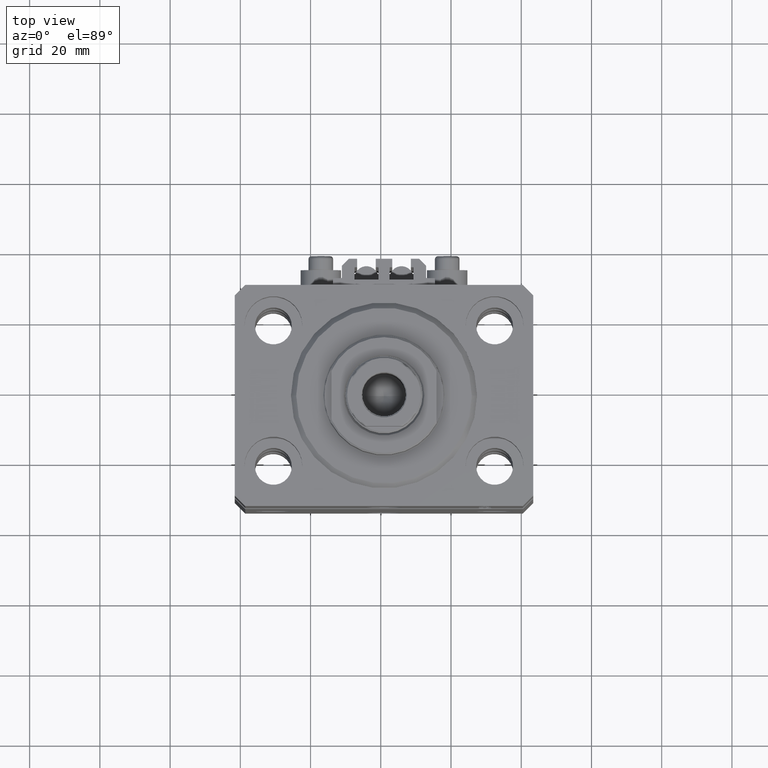
[diagram: clean part render]
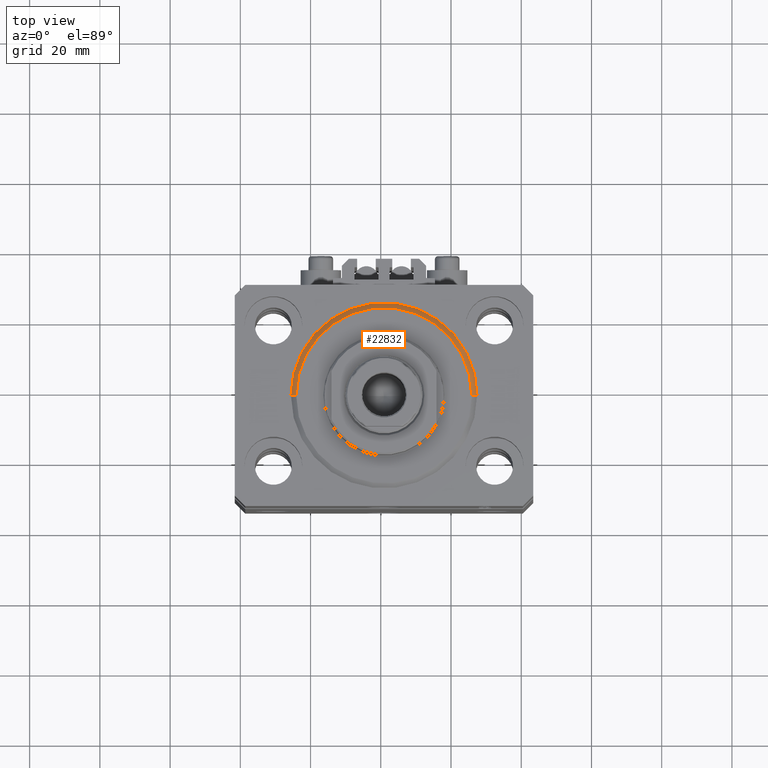
[diagram: same view with one face highlighted and labeled with its STEP entity id]
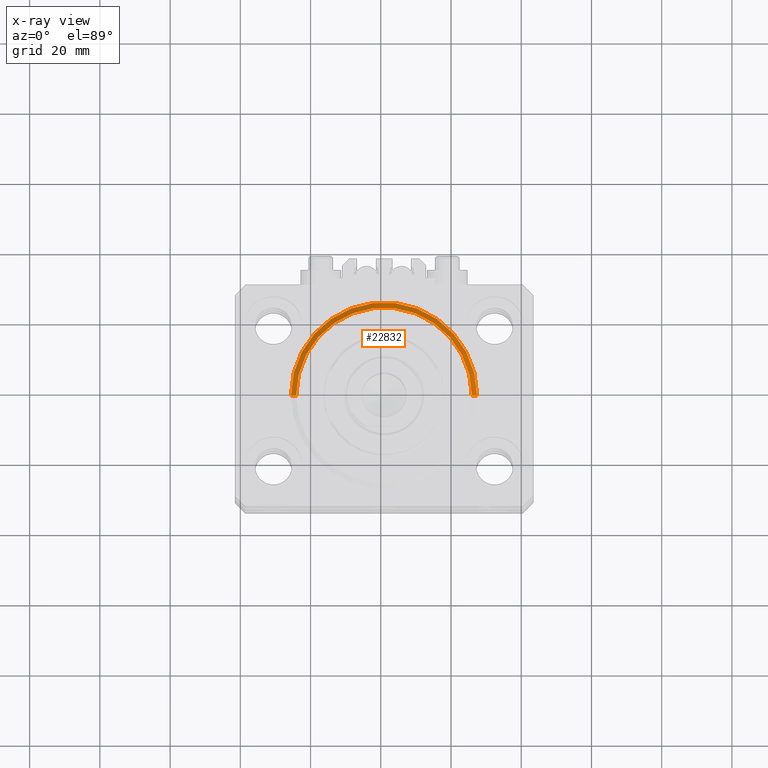
[diagram: x-ray of the same camera — body ghosted, the highlighted face saturated]
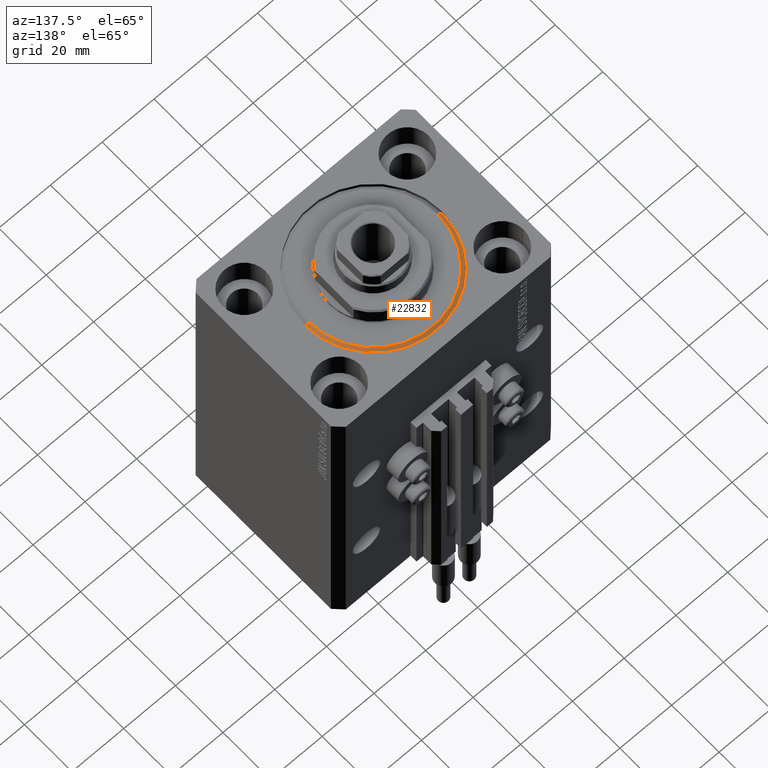
[diagram: same view with one face highlighted and labeled with its STEP entity id]
A machine part, top view. The second image highlights one B-rep face of the part: STEP entity #22832.
The next image is the same camera in x-ray: the body ghosted, the highlighted face saturated — about 0% of this face is hidden behind the body in this view.
A second angle (auxiliary view) of the same face is appended — the face is thin or edge-on in the first view.
In plain terms, the highlighted conical surface has half-angle 45 deg.
Its self-contained STEP definition (entity closure, byte-faithful):
#94 = LINE ( 'NONE', #19136, #48209 ) ;
#1336 = ORIENTED_EDGE ( 'NONE', *, *, #43767, .F. ) ;
#1841 = ORIENTED_EDGE ( 'NONE', *, *, #20472, .T. ) ;
#1879 = LINE ( 'NONE', #20420, #22313 ) ;
#3175 = CARTESIAN_POINT ( 'NONE',  ( 24.99999999999998224, 0.000000000000000000, 0.000000000000000000 ) ) ;
#6661 = CIRCLE ( 'NONE', #20890, 26.50000000000000355 ) ;
#8182 = ORIENTED_EDGE ( 'NONE', *, *, #15376, .F. ) ;
#8434 = DIRECTION ( 'NONE',  ( 1.000000000000000000, 0.000000000000000000, 0.000000000000000000 ) ) ;
#12153 = CARTESIAN_POINT ( 'NONE',  ( 0.000000000000000000, 0.000000000000000000, 1.500000000000018652 ) ) ;
#14587 = VERTEX_POINT ( 'NONE', #28911 ) ;
#15376 = EDGE_CURVE ( 'NONE', #25497, #46887, #94, .T. ) ;
#16100 = DIRECTION ( 'NONE',  ( -0.000000000000000000, -0.000000000000000000, 1.000000000000000000 ) ) ;
#19136 = CARTESIAN_POINT ( 'NONE',  ( 26.50000000000000355, 0.000000000000000000, 1.500000000000018652 ) ) ;
#19940 = DIRECTION ( 'NONE',  ( -0.7071067811865483499, 8.659560562354942719E-17, 0.7071067811865466846 ) ) ;
#20420 = CARTESIAN_POINT ( 'NONE',  ( -26.50000000000000355, 3.245314017740486554E-15, 1.500000000000018652 ) ) ;
#20472 = EDGE_CURVE ( 'NONE', #14587, #29771, #1879, .T. ) ;
#20890 = AXIS2_PLACEMENT_3D ( 'NONE', #12153, #27253, #8434 ) ;
#22313 = VECTOR ( 'NONE', #19940, 1000.000000000000000 ) ;
#22832 = ADVANCED_FACE ( 'NONE', ( #23996 ), #45963, .T. ) ;
#23327 = CARTESIAN_POINT ( 'NONE',  ( 0.000000000000000000, 0.000000000000000000, 0.000000000000000000 ) ) ;
#23551 = DIRECTION ( 'NONE',  ( 0.7071067811865483499, 0.000000000000000000, 0.7071067811865466846 ) ) ;
#23657 = AXIS2_PLACEMENT_3D ( 'NONE', #23327, #44885, #34469 ) ;
#23933 = ORIENTED_EDGE ( 'NONE', *, *, #28806, .F. ) ;
#23996 = FACE_OUTER_BOUND ( 'NONE', #40218, .T. ) ;
#25497 = VERTEX_POINT ( 'NONE', #3175 ) ;
#27253 = DIRECTION ( 'NONE',  ( -0.000000000000000000, -0.000000000000000000, 1.000000000000000000 ) ) ;
#28806 = EDGE_CURVE ( 'NONE', #46887, #29771, #6661, .T. ) ;
#28911 = CARTESIAN_POINT ( 'NONE',  ( -24.99999999999998224, 3.153465507804433615E-15, 0.000000000000000000 ) ) ;
#29771 = VERTEX_POINT ( 'NONE', #47033 ) ;
#34469 = DIRECTION ( 'NONE',  ( 1.000000000000000000, 0.000000000000000000, 0.000000000000000000 ) ) ;
#34886 = DIRECTION ( 'NONE',  ( 1.000000000000000000, 0.000000000000000000, 0.000000000000000000 ) ) ;
#38607 = CARTESIAN_POINT ( 'NONE',  ( 26.50000000000000355, 3.245314017740486554E-15, 1.500000000000018652 ) ) ;
#40218 = EDGE_LOOP ( 'NONE', ( #1336, #1841, #23933, #8182 ) ) ;
#42560 = CARTESIAN_POINT ( 'NONE',  ( 0.000000000000000000, 0.000000000000000000, 1.500000000000018652 ) ) ;
#42894 = AXIS2_PLACEMENT_3D ( 'NONE', #42560, #16100, #34886 ) ;
#43767 = EDGE_CURVE ( 'NONE', #14587, #25497, #44238, .T. ) ;
#44238 = CIRCLE ( 'NONE', #23657, 24.99999999999998224 ) ;
#44885 = DIRECTION ( 'NONE',  ( -0.000000000000000000, -0.000000000000000000, -1.000000000000000000 ) ) ;
#45963 = CONICAL_SURFACE ( 'NONE', #42894, 26.50000000000000355, 0.7853981633974495002 ) ;
#46887 = VERTEX_POINT ( 'NONE', #38607 ) ;
#47033 = CARTESIAN_POINT ( 'NONE',  ( -26.50000000000000355, 0.000000000000000000, 1.500000000000018652 ) ) ;
#48209 = VECTOR ( 'NONE', #23551, 1000.000000000000000 ) ;